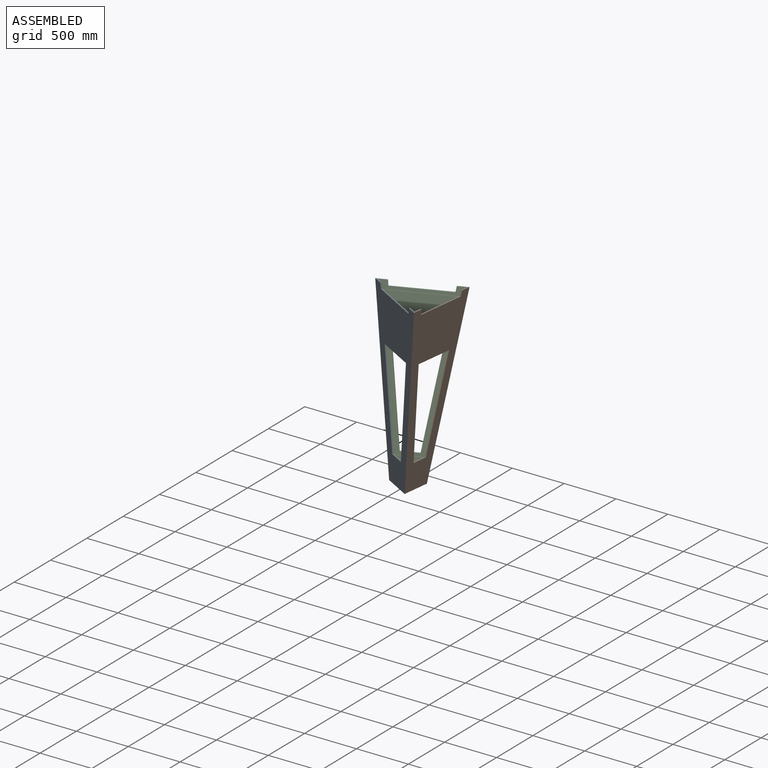
[diagram: assembled view]
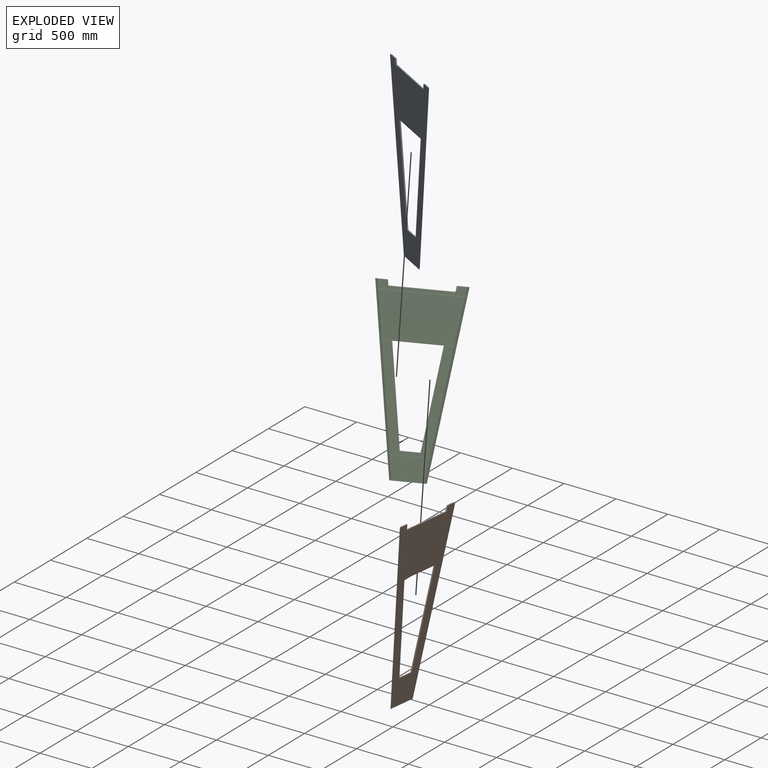
[diagram: exploded view]
GUIDED TOUR — MATED ASSEMBLY (Onshape document 576aef9fe4b06f84201ea96f, AutoMate assembly 576aef9fe4b06f84201ea96f_246a6fd4fd2a36b717d7659b_3368c626d0306fcf10897a8d_default)

This assembly has 3 components, labeled P0..P2 below (a component is one placed occurrence of a part; the same part can appear more than once), held together by 6 mates. A mate is a constraint between two components; its type names the relative motion it leaves free:
  PLANAR — leaves sliding in the plane through the listed point (normal = the listed direction) and rotation about that normal free,
  REVOLUTE — leaves rotation about the listed axis free (a hinge).
Axis/direction vectors are unit vectors and 'through' points are millimeter coordinates, both in the assembly's world frame.

MATES
  1. REVOLUTE "Revolute 1": P1 <-> P2, axis (-0.101, -0.208, -0.973) through (-1012.89, 1281.41, 871.74) mm
  2. PLANAR "Planar 3": P1 <-> P2, direction (-0.858, 0.514, -0.021) through (-1018.90, 1271.46, 873.89) mm
  3. REVOLUTE "Revolute 2": P2 <-> P0, axis (0.135, -0.078, -0.988) through (-1471.54, 1027.60, 900.77) mm
  4. PLANAR "Planar 2": P2 <-> P1, direction (-0.021, -0.076, -0.997) through (-1226.55, 1032.57, 67.65) mm
  5. PLANAR "Planar 1": P0 <-> P2, direction (-0.021, -0.076, -0.997) through (-1228.84, 888.16, 78.70) mm
  6. PLANAR "Planar 4": P2 <-> P0, direction (-0.016, -0.997, 0.076) through (-1459.77, 1027.49, 901.79) mm

ASSEMBLY ORDER
  1. P2 — the base component [order verified]
  2. P0 [order verified]
  3. P1 [order verified]
Order-tag legend:
  [order verified] — this step's position reverses a verified removal order: the component was checked to insert without passing through the ones already placed.

Of the 3 components, 3 carry the full construction recipe — the FeatureScript program that regenerates the part's solid from scratch; the rest are supplied as boundary geometry only.
Each toured component is shown spotlighted twice — in the assembled view, then in the exploded view, where a leader line traces a displaced component back to its assembled socket (saturated green if recipe-attached, orange if geometry-only; every other component desaturated gray) — followed by its recipe or geometry summary and the mates that hold it.
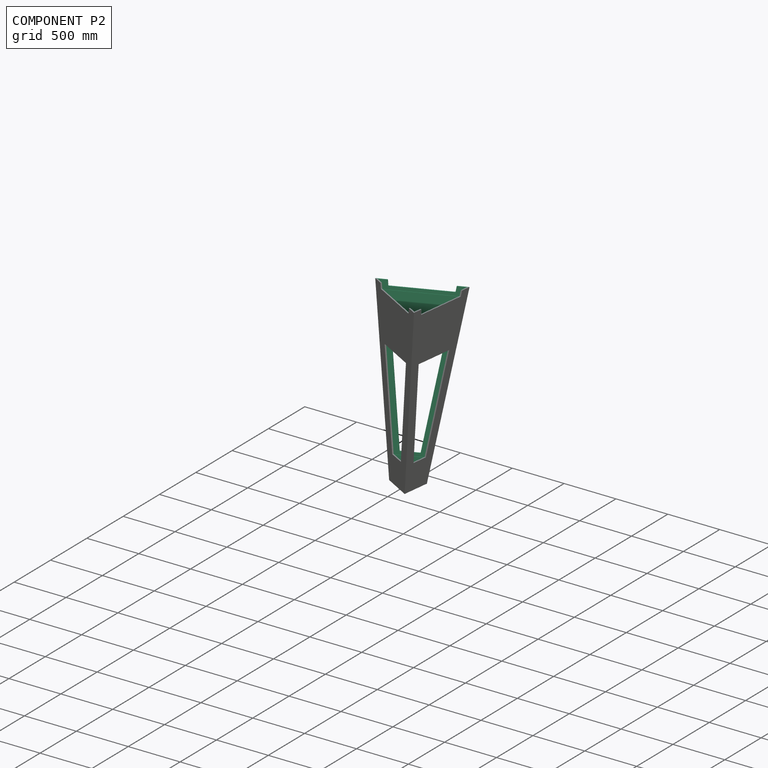
[diagram: component P2 — assembled]
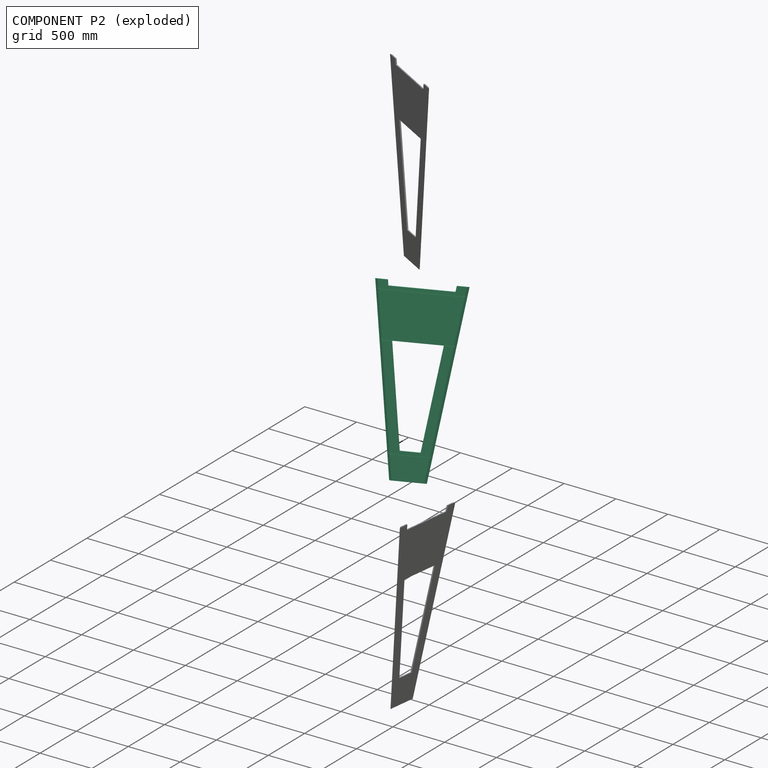
[diagram: component P2 — exploded]
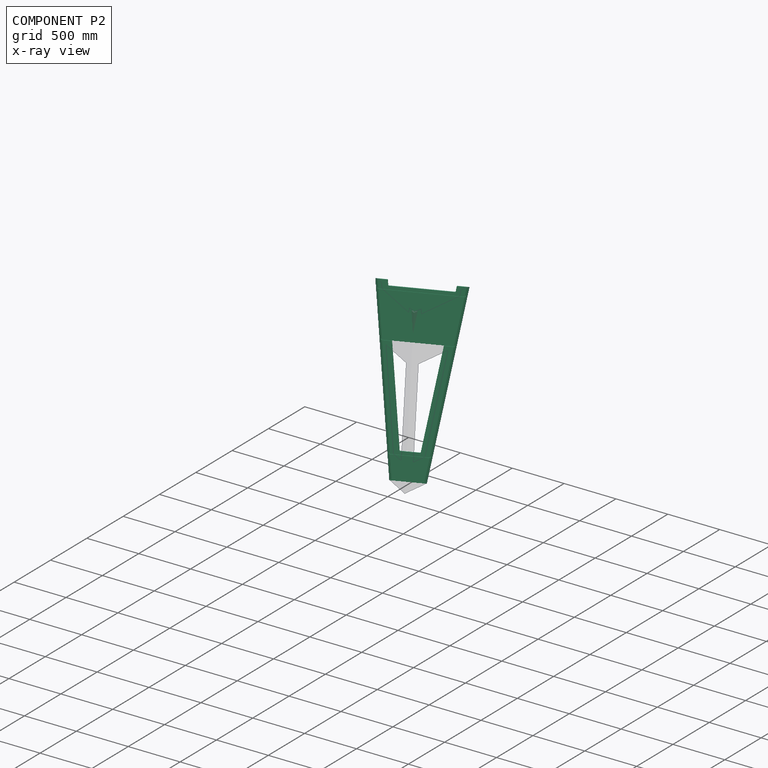
[diagram: component P2 — x-ray view]
COMPONENT P2 — same part as P0 (CADFS 00182572); its construction recipe is shown at P0.
Held by: REVOLUTE mate "Revolute 1" to P1; PLANAR mate "Planar 3" to P1; REVOLUTE mate "Revolute 2" to P0; PLANAR mate "Planar 2" to P1; PLANAR mate "Planar 1" to P0; PLANAR mate "Planar 4" to P0.
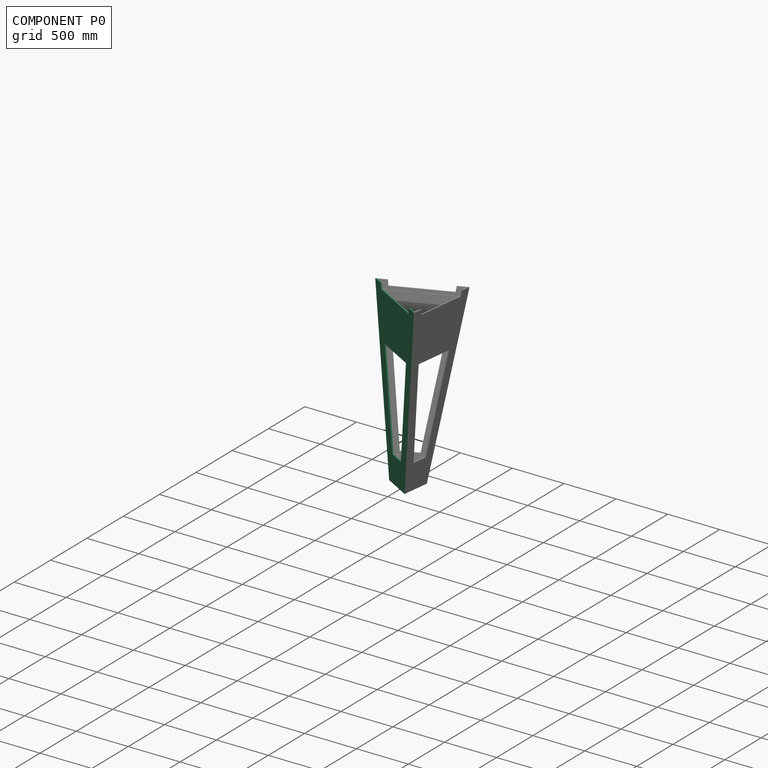
[diagram: component P0 — assembled]
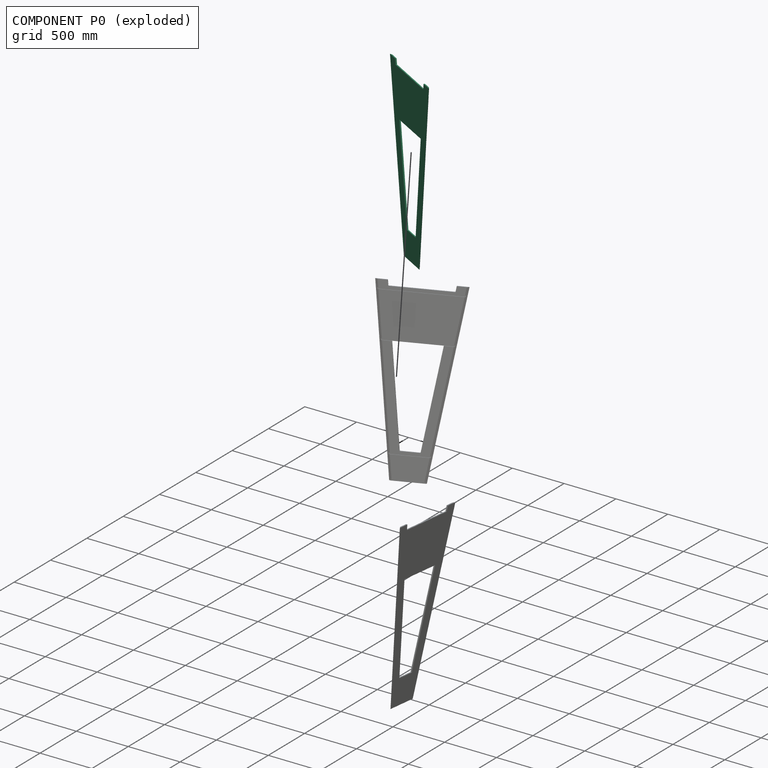
[diagram: component P0 — exploded]
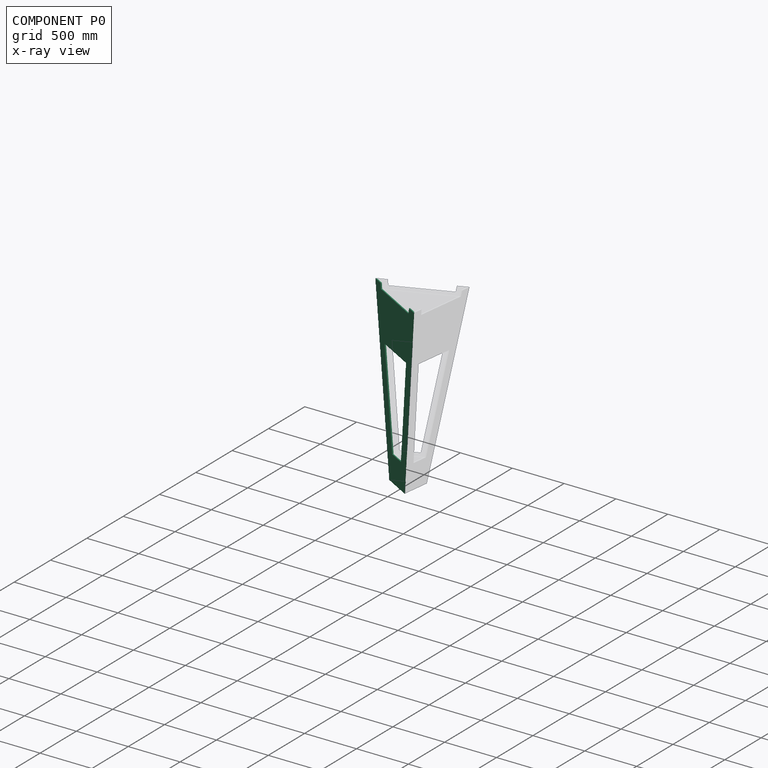
[diagram: component P0 — x-ray view]
COMPONENT P0 — recipe-attached (CADFS 00182572, mesh-verified: the recipe's output STEP matches this component's geometry to below the mesh-comparison resolution (tessellation chordal tolerance ~2.73 mm)).
Held by: REVOLUTE mate "Revolute 2" to P2; PLANAR mate "Planar 1" to P2; PLANAR mate "Planar 4" to P2.
Construction recipe (FeatureScript — the CAD program that rebuilds this solid; sketch coordinates are in the units given by the * unit suffixes, e.g. mm):

FeatureScript 1511;
import(path : "onshape/std/geometry.fs", version : "1511.0");
import(path : "onshape/std/common.fs", version : "1511.0");
const mm = millimeter;
const VERTEX = EntityType.VERTEX;
const EDGE = EntityType.EDGE;
const FACE = EntityType.FACE;
const BODY = EntityType.BODY;
function v(x, y){return vector(x, y);}
function OD(order){return orderDisambiguation(order);}
function OSD(set){return originalSetDisambiguation(set);}
function TD(topology){return topologyDisambiguation(topology);}
function TDD(query){return trueDependencyDisambiguation(query);}
function sQuery(a, b, c) {return sketchEntityQuery(a, b, c);}

annotation { "Feature Type Name" : "Feature", "Feature Type Description" : "" }
export const myFeature = defineFeature(function(context is Context, id is Id, definition is map)
    precondition{}
    {
        {
            var Q0;
            Q0=qCreatedBy(makeId("Front.planeOp"),FACE);
            var sketch = newSketch(context, id + "F0", { "sketchPlane" : qUnion([Q0])});
            skLineSegment(sketch, "E0", {"start": v(-375, 0) * mm, "end": v(375, 0) * mm});
            skLineSegment(sketch, "E1", {"start": v(0, 0) * mm, "end": v(0, 1650) * mm});
            skLineSegment(sketch, "E2", {"start": v(-150, 1650) * mm, "end": v(150, 1650) * mm});
            skSolve(sketch);
        }
        {
            var Q0;
            Q0=sQuery(id+"F0.wireOp",EDGE,"E2");
            cPoint(context, id + "F1", {"entities" : qUnion([Q0]), "parameter" : 0.5});
        }
        {
            var Q0;
            Q0=qCreatedBy(id+"F1",VERTEX);
            var Q1;
            Q1=sQuery(id+"F0.wireOp",EDGE,"E1");
            cPlane(context, id + "F2", {"entities" : qUnion([Q0, Q1]), "cplaneType" : CPlaneType.LINE_POINT, "offset" : 25 * mm, "width" : 150 * mm, "height" : 150 * mm});
        }
        {
            var Q0;
            Q0=qCreatedBy(makeId("Top.planeOp"),FACE);
            var sketch = newSketch(context, id + "F3", { "sketchPlane" : qUnion([Q0])});
            skCircle(sketch, "E3.cCircle", {"center": v(0, 0) * mm, "radius": 216.5 * mm, "construction": true});
            skLineSegment(sketch, "E3.0", {"start": v(375, -216.5) * mm, "end": v(-375, -216.5) * mm});
            skLineSegment(sketch, "E3.1", {"start": v(-375, -216.5) * mm, "end": v(0, 433.01) * mm});
            skLineSegment(sketch, "E3.2", {"start": v(0, 433.01) * mm, "end": v(375, -216.5) * mm});
            skPoint(sketch, "E3.0.midPoint", {"position": v(0, -216.5) * mm});
            skSolve(sketch);
        }
        {
            var Q0;
            Q0=qCreatedBy(id+"F2.planeOp",FACE);
            var sketch = newSketch(context, id + "F4", { "sketchPlane" : qUnion([Q0])});
            skCircle(sketch, "E4.cCircle", {"center": v(0, 0) * mm, "radius": 86.6 * mm, "construction": true});
            skLineSegment(sketch, "E4.0", {"start": v(150, -86.6) * mm, "end": v(-150, -86.6) * mm});
            skLineSegment(sketch, "E4.1", {"start": v(-150, -86.6) * mm, "end": v(0, 173.2) * mm});
            skLineSegment(sketch, "E4.2", {"start": v(0, 173.2) * mm, "end": v(150, -86.6) * mm});
            skPoint(sketch, "E4.0.midPoint", {"position": v(0, -86.6) * mm});
            skSolve(sketch);
        }
        {
            var Q0;
            Q0=makeQuery(id+"F3.imprint","IMPRINT",FACE,{"disambiguationData":[TD([[makeQuery(id+"F3.imprint","IMPRINT",EDGE,{"derivedFrom":sQuery(id+"F3.wireOp",EDGE,"E3.0")}),-1.0]])]});
            var Q1;
            Q1=makeQuery(id+"F4.imprint","IMPRINT",FACE,{"disambiguationData":[TD([[makeQuery(id+"F4.imprint","IMPRINT",EDGE,{"derivedFrom":sQuery(id+"F4.wireOp",EDGE,"E4.0")}),-1.0]])]});
            loft(context, id + "F5", {"sheetProfilesArray" : [{ "sheetProfileEntities" : qUnion([Q0]) }, { "sheetProfileEntities" : qUnion([Q1]) }]});
        }
        {
            var Q0;
            {var subQ0=sQuery(id+"F4.wireOp",EDGE,"E4.0");var subQ1=sQuery(id+"F4.wireOp",EDGE,"E4.1");var subQ2=sQuery(id+"F4.wireOp",EDGE,"E4.2");var subQ3=sQuery(id+"F3.wireOp",EDGE,"E3.0");var subQ4=sQuery(id+"F3.wireOp",EDGE,"E3.1");var subQ5=sQuery(id+"F3.wireOp",EDGE,"E3.2");Q0=makeQuery(id+"F5.opLoft","SWEPT_FACE",FACE,{"disambiguationData":[OSD([subQ3,subQ4,subQ5,subQ0,subQ1,subQ2]),TDD([makeQuery(id+"F3.imprint","INTERSECT",VERTEX,{"derivedFrom":[subQ3,subQ5]}),makeQuery(id+"F3.imprint","INTERSECT",VERTEX,{"derivedFrom":[subQ3,subQ4]}),makeQuery(id+"F3.imprint","IMPRINT",EDGE,{"derivedFrom":subQ3}),makeQuery(id+"F4.imprint","INTERSECT",VERTEX,{"derivedFrom":[subQ0,subQ2]}),makeQuery(id+"F4.imprint","INTERSECT",VERTEX,{"derivedFrom":[subQ0,subQ1]}),makeQuery(id+"F4.imprint","IMPRINT",EDGE,{"derivedFrom":subQ0})])]});}
            cPlane(context, id + "F6", {"entities" : qUnion([Q0]), "cplaneType" : CPlaneType.OFFSET, "offset" : 12 * mm, "oppositeDirection" : true, "width" : 150 * mm, "height" : 150 * mm});
        }
        {
            var Q0;
            Q0=qCreatedBy(id+"F6.planeOp",FACE);
            var sketch = newSketch(context, id + "F7", { "sketchPlane" : qUnion([Q0])});
            skCircle(sketch, "E5", {"center": v(0, 812.97) * mm, "radius": 960.24 * mm});
            skSolve(sketch);
        }
        {
            var Q0;
            Q0=qSketchRegion(id+"F7",true);
            extrude(context, id + "F8", {"entities" : qUnion([Q0]), "operationType" : NewBodyOperationType.REMOVE, "endBound" : BoundingType.THROUGH_ALL, "oppositeDirection" : true, "depth" : 25 * mm});
        }
        {
            var Q0;
            Q0=makeQuery(id+"F5.opLoft","CAP_FACE",FACE,{"disambiguationData":[OSD([makeQuery(id+"F4.imprint","IMPRINT",FACE,{"disambiguationData":[TD([[makeQuery(id+"F4.imprint","IMPRINT",EDGE,{"derivedFrom":sQuery(id+"F4.wireOp",EDGE,"E4.0")}),-1.0]])]})])],"isStart":true});
            var sketch = newSketch(context, id + "F9", { "sketchPlane" : qUnion([Q0])});
            skLineSegment(sketch, "E6", {"start": v(150, -86.6) * mm, "end": v(129.15, -74.57) * mm});
            skLineSegment(sketch, "E7", {"start": v(-150, -86.6) * mm, "end": v(-129.15, -74.57) * mm});
            skLineSegment(sketch, "E8", {"start": v(129.15, -74.57) * mm, "end": v(70, -40.41) * mm, "construction": true});
            skLineSegment(sketch, "E9", {"start": v(129.15, -74.57) * mm, "end": v(104.15, -31.26) * mm, "construction": true});
            skLineSegment(sketch, "E10", {"start": v(104.15, -31.26) * mm, "end": v(70, -40.41) * mm, "construction": true});
            skLineSegment(sketch, "E11.MirrorCS", {"start": v(79.15, -74.57) * mm, "end": v(70, -40.41) * mm, "construction": true});
            skLineSegment(sketch, "E12.MirrorCS", {"start": v(129.15, -74.57) * mm, "end": v(79.15, -74.57) * mm, "construction": true});
            skSolve(sketch);
        }
        {
            var Q0;
            Q0=makeQuery(id+"F5.opLoft","SWEPT_EDGE",EDGE,{"disambiguationData":[OSD([sQuery(id+"F3.wireOp",EDGE,"E3.0"),sQuery(id+"F3.wireOp",EDGE,"E3.1"),sQuery(id+"F4.wireOp",EDGE,"E4.0"),sQuery(id+"F4.wireOp",EDGE,"E4.1")])]});
            var Q1;
            Q1=sQuery(id+"F9.wireOp",EDGE,"E7");
            cPlane(context, id + "F10", {"entities" : qUnion([Q0, Q1]), "cplaneType" : CPlaneType.LINE_ANGLE, "offset" : 25 * mm, "angle" : 0 * degree, "width" : 150 * mm, "height" : 150 * mm});
        }
        {
            var Q0;
            Q0=makeQuery(id+"F5.opLoft","SWEPT_EDGE",EDGE,{"disambiguationData":[OSD([sQuery(id+"F3.wireOp",EDGE,"E3.0"),sQuery(id+"F3.wireOp",EDGE,"E3.2"),sQuery(id+"F4.wireOp",EDGE,"E4.0"),sQuery(id+"F4.wireOp",EDGE,"E4.2")])]});
            var Q1;
            Q1=sQuery(id+"F9.wireOp",EDGE,"E6");
            cPlane(context, id + "F11", {"entities" : qUnion([Q0, Q1]), "cplaneType" : CPlaneType.LINE_ANGLE, "offset" : 25 * mm, "angle" : 0 * degree, "width" : 150 * mm, "height" : 150 * mm});
        }
        {
            var Q0;
            Q0=qCreatedBy(id+"F11.planeOp",FACE);
            var sketch = newSketch(context, id + "F12", { "sketchPlane" : qUnion([Q0])});
            skCircle(sketch, "E13", {"center": v(304.07, 817.21) * mm, "radius": 870.23 * mm});
            skSolve(sketch);
        }
        {
            var Q0;
            Q0=qSketchRegion(id+"F12",true);
            extrude(context, id + "F13", {"entities" : qUnion([Q0]), "operationType" : NewBodyOperationType.REMOVE, "oppositeDirection" : true, "depth" : 25 * mm});
        }
        {
            var Q0;
            Q0=qCreatedBy(id+"F10.planeOp",FACE);
            var sketch = newSketch(context, id + "F14", { "sketchPlane" : qUnion([Q0])});
            skCircle(sketch, "E14", {"center": v(291.65, 811.12) * mm, "radius": 892.94 * mm});
            skSolve(sketch);
        }
        {
            var Q0;
            Q0=qSketchRegion(id+"F14",true);
            extrude(context, id + "F15", {"entities" : qUnion([Q0]), "operationType" : NewBodyOperationType.REMOVE, "depth" : 25 * mm});
        }
        {
            var Q0;
            Q0=qCreatedBy(makeId("Front.planeOp"),FACE);
            var sketch = newSketch(context, id + "F16", { "sketchPlane" : qUnion([Q0])});
            skLineSegment(sketch, "E15.0.0", {"start": v(-354.15, 0) * mm, "end": v(-129.15, 1650) * mm, "construction": true});
            skLineSegment(sketch, "E15.0.1", {"start": v(-129.15, 1650) * mm, "end": v(129.15, 1650) * mm});
            skLineSegment(sketch, "E15.0.2", {"start": v(129.15, 1650) * mm, "end": v(354.15, 0) * mm, "construction": true});
            skLineSegment(sketch, "E16.0.1", {"start": v(-150, 1650) * mm, "end": v(-375, 0) * mm, "construction": true});
            skLineSegment(sketch, "E16.0.3", {"start": v(375, 0) * mm, "end": v(150, 1650) * mm, "construction": true});
            skLineSegment(sketch, "E17", {"start": v(0, 0) * mm, "end": v(0, 50) * mm, "construction": true});
            skLineSegment(sketch, "E18", {"start": v(0, 1400) * mm, "end": v(0, 1650) * mm, "construction": true});
            skLineSegment(sketch, "E19", {"start": v(0, 1400) * mm, "end": v(0, 500) * mm, "construction": true});
            skLineSegment(sketch, "E20", {"start": v(0, 500) * mm, "end": v(0, 50) * mm, "construction": true});
            skLineSegment(sketch, "E21", {"start": v(205.9, 500) * mm, "end": v(-205.9, 500) * mm});
            skLineSegment(sketch, "E22", {"start": v(-205.9, 500) * mm, "end": v(-83.17, 1400) * mm});
            skLineSegment(sketch, "E23", {"start": v(-83.17, 1400) * mm, "end": v(83.17, 1400) * mm});
            skLineSegment(sketch, "E24", {"start": v(83.17, 1400) * mm, "end": v(205.9, 500) * mm});
            skLineSegment(sketch, "E25", {"start": v(-274.07, 0) * mm, "end": v(-267.26, 50) * mm});
            skLineSegment(sketch, "E26", {"start": v(-267.26, 50) * mm, "end": v(267.26, 50) * mm});
            skLineSegment(sketch, "E27", {"start": v(267.26, 50) * mm, "end": v(274.07, 0) * mm});
            skLineSegment(sketch, "E28", {"start": v(274.07, 0) * mm, "end": v(-274.07, 0) * mm});
            skSolve(sketch);
        }
        {
            var Q0;
            Q0=qCreatedBy(makeId("Front.planeOp"),FACE);
            var sketch = newSketch(context, id + "F17", { "sketchPlane" : qUnion([Q0])});
            skLineSegment(sketch, "E29.0", {"start": v(375, 0) * mm, "end": v(150, 1650) * mm, "construction": true});
            skLineSegment(sketch, "E30.0", {"start": v(129.15, 1650) * mm, "end": v(354.15, 0) * mm, "construction": true});
            skLineSegment(sketch, "E31.0", {"start": v(-354.15, 0) * mm, "end": v(-129.15, 1650) * mm, "construction": true});
            skLineSegment(sketch, "E32.0", {"start": v(-150, 1650) * mm, "end": v(-375, 0) * mm, "construction": true});
            skPoint(sketch, "E33.0", {"position": v(0, 50) * mm});
            skPoint(sketch, "E34.0", {"position": v(0, 500) * mm});
            skPoint(sketch, "E35.0", {"position": v(0, 1400) * mm});
            skLineSegment(sketch, "E36", {"start": v(181.36, 1420) * mm, "end": v(-181.36, 1420) * mm});
            skLineSegment(sketch, "E37", {"start": v(-181.36, 1420) * mm, "end": v(-179.73, 1432) * mm});
            skLineSegment(sketch, "E38", {"start": v(-179.73, 1432) * mm, "end": v(179.73, 1432) * mm});
            skLineSegment(sketch, "E39", {"start": v(181.36, 1420) * mm, "end": v(179.73, 1432) * mm});
            skLineSegment(sketch, "E40", {"start": v(150, 1650) * mm, "end": v(-150, 1650) * mm});
            skLineSegment(sketch, "E41", {"start": v(-150, 1650) * mm, "end": v(-151.64, 1638) * mm});
            skLineSegment(sketch, "E42", {"start": v(-151.64, 1638) * mm, "end": v(151.64, 1638) * mm});
            skLineSegment(sketch, "E43", {"start": v(306.82, 500) * mm, "end": v(-306.82, 500) * mm});
            skLineSegment(sketch, "E44", {"start": v(-306.82, 500) * mm, "end": v(-308.45, 488) * mm});
            skLineSegment(sketch, "E45", {"start": v(-308.45, 488) * mm, "end": v(308.45, 488) * mm});
            skLineSegment(sketch, "E46", {"start": v(306.82, 500) * mm, "end": v(308.45, 488) * mm});
            skLineSegment(sketch, "E47", {"start": v(365.45, 70) * mm, "end": v(-365.45, 70) * mm});
            skLineSegment(sketch, "E48", {"start": v(-365.45, 70) * mm, "end": v(-363.82, 82) * mm});
            skLineSegment(sketch, "E49", {"start": v(-363.82, 82) * mm, "end": v(363.82, 82) * mm});
            skLineSegment(sketch, "E50", {"start": v(363.82, 82) * mm, "end": v(365.45, 70) * mm});
            skLineSegment(sketch, "E51", {"start": v(150, 1650) * mm, "end": v(151.64, 1638) * mm});
            skSolve(sketch);
        }
        {
            var Q0;
            Q0=makeQuery(id+"F8.boolean.opBoolean","COPY",FACE,{"derivedFrom":makeQuery(id+"F8.opExtrude","CAP_FACE",FACE,{"disambiguationData":[OSD([sQuery(id+"F7.wireOp",EDGE,"E5")])],"isStart":true})});
            cPlane(context, id + "F18", {"entities" : qUnion([Q0]), "cplaneType" : CPlaneType.OFFSET, "offset" : 6 * mm, "oppositeDirection" : true, "width" : 150 * mm, "height" : 150 * mm});
        }
        {
            var Q0;
            Q0=qSketchRegion(id+"F17",true);
            var Q1;
            Q1=qCreatedBy(id+"F18.planeOp",FACE);
            extrude(context, id + "F19", {"entities" : qUnion([Q0]), "operationType" : NewBodyOperationType.REMOVE, "endBound" : BoundingType.UP_TO_SURFACE, "endBoundEntityFace" : qUnion([Q1]), "depth" : 25 * mm});
        }
        {
            var Q0;
            Q0=makeQuery(id+"F16.imprint","IMPRINT",FACE,{"disambiguationData":[TD([[makeQuery(id+"F16.imprint","IMPRINT",EDGE,{"derivedFrom":sQuery(id+"F16.wireOp",EDGE,"E25")}),-1.0]])]});
            var Q1;
            Q1=makeQuery(id+"F16.imprint","IMPRINT",FACE,{"disambiguationData":[TD([[makeQuery(id+"F16.imprint","IMPRINT",EDGE,{"derivedFrom":sQuery(id+"F16.wireOp",EDGE,"E21")}),-1.0]])]});
            extrude(context, id + "F20", {"entities" : qUnion([Q0, Q1]), "operationType" : NewBodyOperationType.REMOVE, "endBound" : BoundingType.THROUGH_ALL, "depth" : 25 * mm});
        }
    });
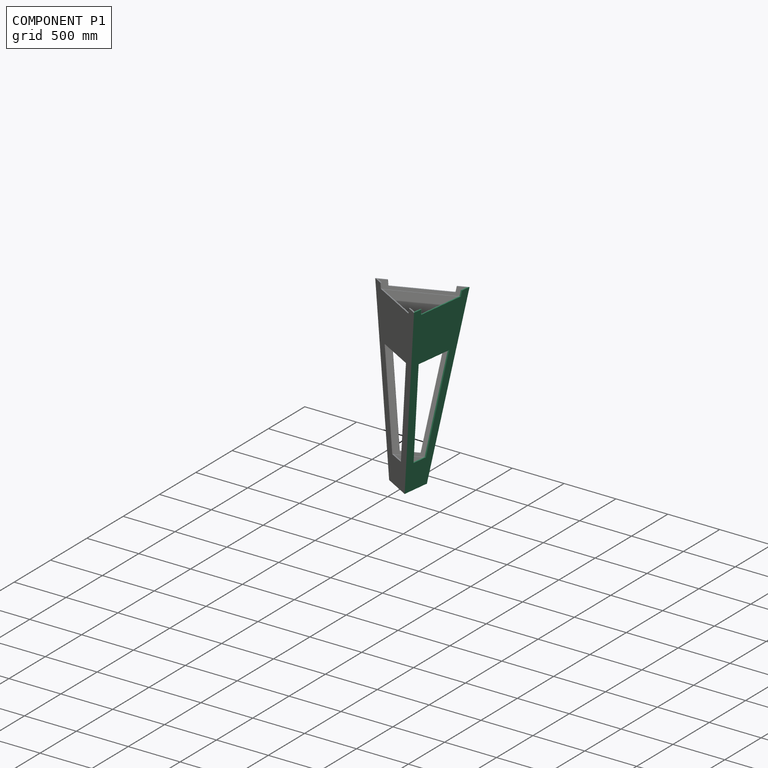
[diagram: component P1 — assembled]
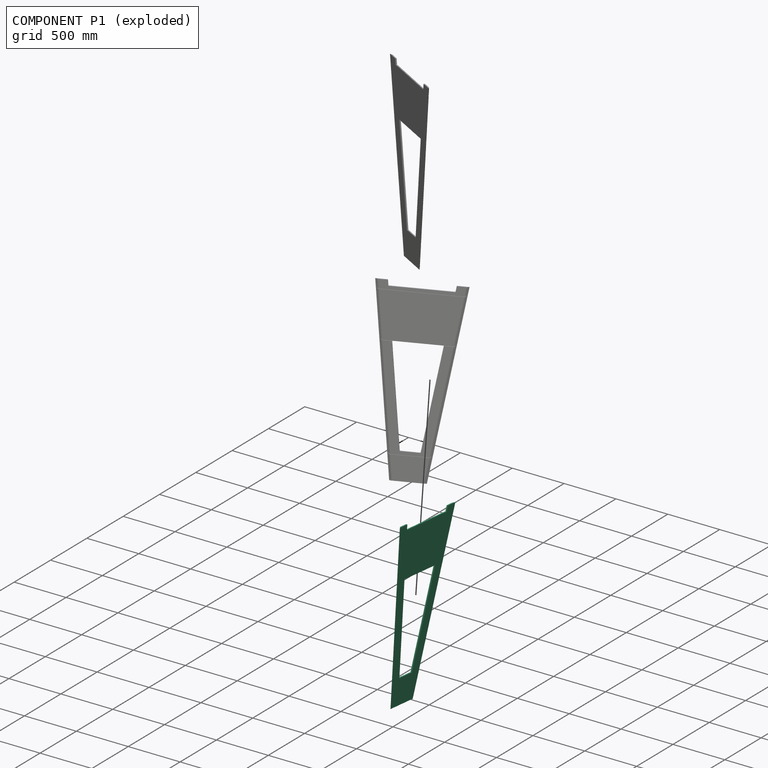
[diagram: component P1 — exploded]
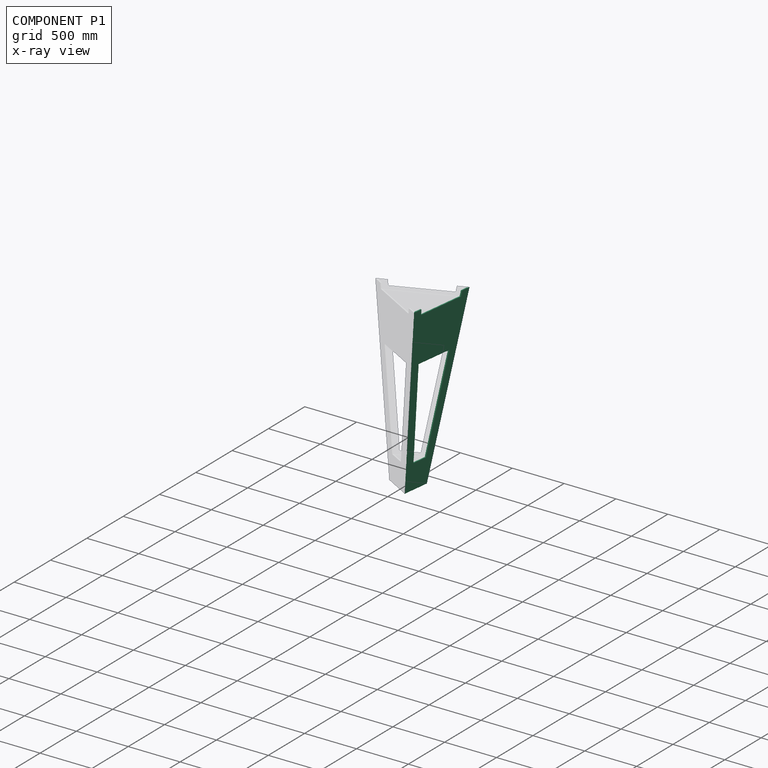
[diagram: component P1 — x-ray view]
COMPONENT P1 — same part as P0 (CADFS 00182572); its construction recipe is shown at P0.
Held by: REVOLUTE mate "Revolute 1" to P2; PLANAR mate "Planar 3" to P2; PLANAR mate "Planar 2" to P2.
PROVENANCE & LICENSES
Assembly (occurrences, transforms, mates, per-part STEP geometry): AutoMate dataset, Zenodo record 7776208, CC0.
Construction recipes: CADFS (HuggingFace VladPyatov/CADFS, CC-BY-4.0, layered over the ABC dataset), FeatureScript reconstruction programs keyed by ABC model id.
Join: ABC meta listings map ABC model id -> Onshape documentId; within a shared document, parts are matched by geometric signature (bounding-box dims + volume at 0.1% relative tolerance, exact B-rep face/solid counts).
Verification: 3 of this assembly's 3 components carry a recipe attachment, and every attachment is mesh-verified: the CADFS STEP and the AutoMate member STEP were compared as meshes in their shared local frame (symmetric sampled-point-to-mesh distance); worst across the 3 attachments: below the mesh-comparison resolution (tessellation chordal tolerance ~2.73 mm) on a 1818 mm part.
Renders: orthographic iso camera (az 35 / el 25); the floor grid conveys scale (grid pitch printed in each image; no ruler). In the exploded view each component is displaced by its stored offset vector: the offsets alone carry the explosion direction (mate normal/axis signs are not orientation cues and do not encode it), and separation distances are assigned per mate-chain, not proportionally to assembly-order depth.
